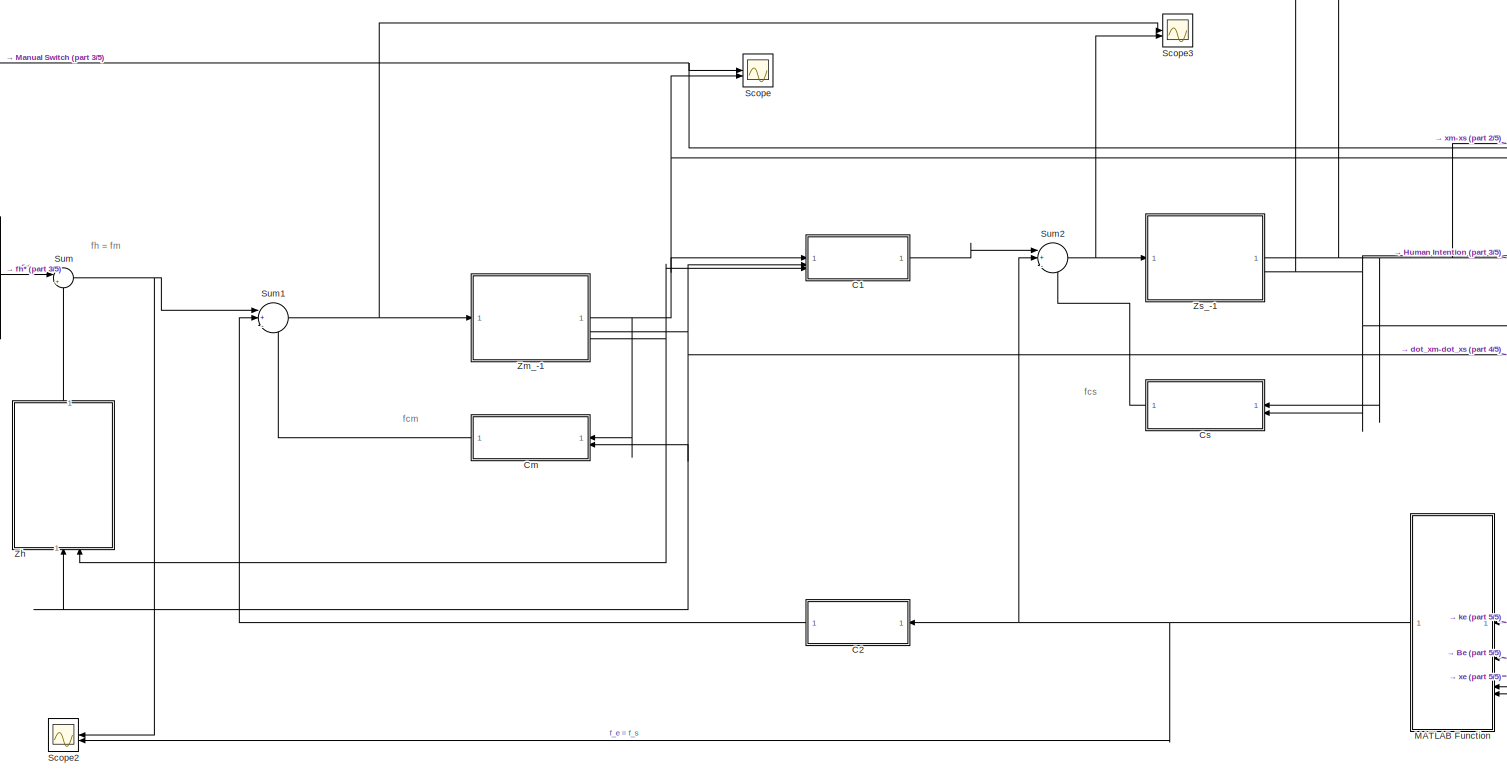
[diagram: root canvas - part 1/5, center side, full height]
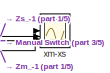
[diagram: root canvas - part 2/5, top right region]
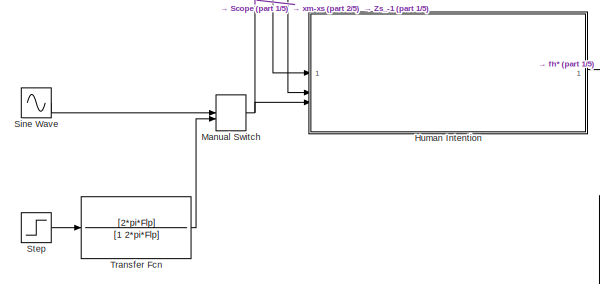
[diagram: root canvas - part 3/5, middle left region]
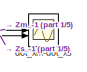
[diagram: root canvas - part 4/5, middle right region]
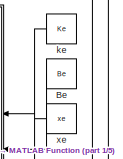
[diagram: root canvas - part 5/5, bottom right region]
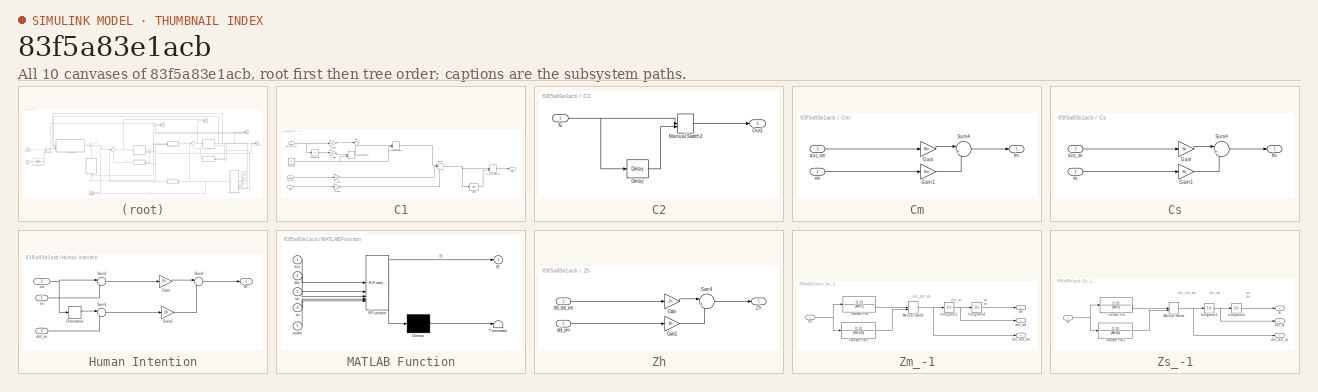
[diagram: thumbnail index - all 10 canvases of the model, root first then tree order]
MODEL slx_83f5a83e1acb
KIND model
CONFIG AbsTol = auto
CONFIG EnableMultiTasking = off
CONFIG FixedStep = auto
CONFIG MaxStep = auto
CONFIG MinStep = auto
CONFIG RelTol = 1e-3
CONFIG SampleTimeConstraint = Unconstrained
CONFIG SolverName = VariableStepAuto
CONFIG StartTime = 0.0
CONFIG StopTime = 5
BLOCK [Constant] Be
  Value = Be
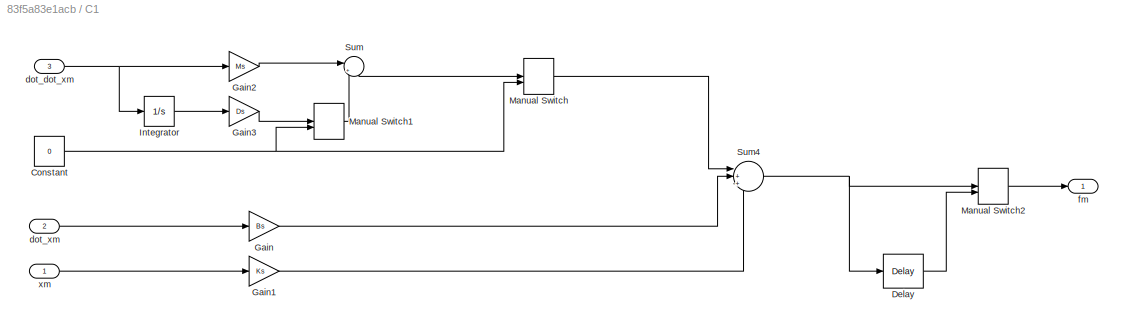
BLOCK [SubSystem] C1
BLOCK [Constant] C1/Constant
  Value = 0
BLOCK [Delay] C1/Delay
  InputPortMap = u0
BLOCK [Gain] C1/Gain
  Gain = Bs
BLOCK [Gain] C1/Gain1
  Gain = Ks
BLOCK [Gain] C1/Gain2
  Gain = Ms
BLOCK [Gain] C1/Gain3
  Gain = Ds
BLOCK [Integrator] C1/Integrator
BLOCK [ManualSwitch] C1/Manual Switch
BLOCK [ManualSwitch] C1/Manual Switch1
BLOCK [ManualSwitch] C1/Manual Switch2
  CurrentSetting = 0
BLOCK [Sum] C1/Sum
  Inputs = |++
BLOCK [Sum] C1/Sum4
  Inputs = |+++
BLOCK [Inport] C1/dot_dot_xm
  Port = 3
BLOCK [Inport] C1/dot_xm
  Port = 2
BLOCK [Outport] C1/fm
BLOCK [Inport] C1/xm
BLOCK [SubSystem] C2
BLOCK [Delay] C2/Delay
  InputPortMap = u0
BLOCK [ManualSwitch] C2/Manual Switch2
  CurrentSetting = 0
BLOCK [Outport] C2/Out1
BLOCK [Inport] C2/fE
BLOCK [SubSystem] Cm
BLOCK [Gain] Cm/Gain
  Gain = Bm
BLOCK [Gain] Cm/Gain1
  Gain = Km
BLOCK [Sum] Cm/Sum4
  Inputs = |++
BLOCK [Inport] Cm/dot_xm
  Port = 2
BLOCK [Outport] Cm/fm
BLOCK [Inport] Cm/xm
BLOCK [SubSystem] Cs
BLOCK [Gain] Cs/Gain
  Gain = Bs
BLOCK [Gain] Cs/Gain1
  Gain = Ks
BLOCK [Sum] Cs/Sum4
  Inputs = |++
BLOCK [Inport] Cs/dot_xs
  Port = 2
BLOCK [Outport] Cs/fm
BLOCK [Inport] Cs/xs
BLOCK [SubSystem] Human Intention
BLOCK [Derivative] Human Intention/Derivative
BLOCK [Gain] Human Intention/Gain
  Gain = Ph
BLOCK [Gain] Human Intention/Gain1
  Gain = Dh
BLOCK [Sum] Human Intention/Sum1
  Inputs = |+-
BLOCK [Sum] Human Intention/Sum2
  Inputs = |+-
BLOCK [Sum] Human Intention/Sum3
  Inputs = |++
BLOCK [Inport] Human Intention/dot_xs
  Port = 2
BLOCK [Outport] Human Intention/fh*
BLOCK [Inport] Human Intention/xd
  Port = 3
BLOCK [Inport] Human Intention/xs
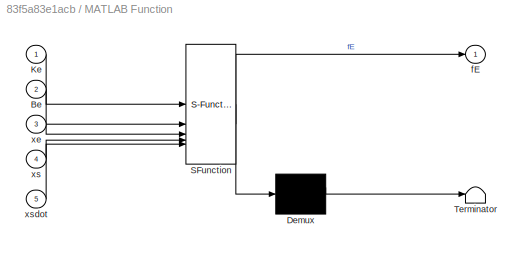
BLOCK [SubSystem] MATLAB Function
  ErrorFcn = Stateflow.Translate.translate
  PermitHierarchicalResolution = ExplicitOnly
  SFBlockType = MATLAB Function
  TreatAsAtomicUnit = on
BLOCK [Demux] MATLAB Function/ Demux 
  Outputs = 1
BLOCK [S-Function] MATLAB Function/ SFunction 
  EnableBusSupport = on
  FunctionName = sf_sfun
  PortCounts = [5 2]
  SFcnIsStateOwnerBlock = off
  SFunctionDeploymentMode = off
  Tag = Stateflow S-Function 2
BLOCK [Terminator] MATLAB Function/ Terminator 
BLOCK [Inport] MATLAB Function/Be
  Port = 2
BLOCK [Inport] MATLAB Function/Ke
BLOCK [Outport] MATLAB Function/fE
BLOCK [Inport] MATLAB Function/xe
  Port = 3
BLOCK [Inport] MATLAB Function/xs
  Port = 4
BLOCK [Inport] MATLAB Function/xsdot
  Port = 5
BLOCK [ManualSwitch] Manual Switch
BLOCK [Scope] Scope
  Floating = off
  NumInputPorts = 2
  ScopeSpecificationString = Simulink.scopes.TimeScopeBlockCfg('CurrentConfiguration', extmgr.ConfigurationSet(extmgr.Configuration('Core','General UI',true),extmgr.Configuration('Core','Source UI',true),extmgr.Configuration('Sources','WiredSimulink',true),extmgr.Configuration('Visuals','Time Domain',true,'SerializedDisplays',{struct('MinYLimReal','-33.14001','MaxYLimReal','31.45996','YLabelReal','','MinYLimMag','0.00000','Ma...<+1513ch>
BLOCK [Scope] Scope2
  Floating = off
  NumInputPorts = 2
  ScopeSpecificationString = Simulink.scopes.TimeScopeBlockCfg('CurrentConfiguration', extmgr.ConfigurationSet(extmgr.Configuration('Core','General UI',true),extmgr.Configuration('Core','Source UI',true),extmgr.Configuration('Sources','WiredSimulink',true,'DataLoggingVariableName','ScopeData2'),extmgr.Configuration('Visuals','Time Domain',true,'SerializedDisplays',{struct('MinYLimReal','-9061.08319','MaxYLimReal','18409.49007...<+1572ch>
BLOCK [Scope] Scope3
  Floating = off
  NumInputPorts = 2
  ScopeSpecificationString = Simulink.scopes.TimeScopeBlockCfg('CurrentConfiguration', extmgr.ConfigurationSet(extmgr.Configuration('Core','General UI',true),extmgr.Configuration('Core','Source UI',true),extmgr.Configuration('Sources','WiredSimulink',true,'DataLoggingVariableName','ScopeData1'),extmgr.Configuration('Visuals','Time Domain',true,'SerializedDisplays',{struct('MinYLimReal','-20349.54623','MaxYLimReal','7846.10159...<+1574ch>
BLOCK [Sin] Sine Wave
  Amplitude = A
  Frequency = 2*pi*Fc
  SampleTime = 0
BLOCK [Step] Step
  After = A
  SampleTime = 0
  Time = 0.5
BLOCK [Sum] Sum
  Inputs = |+-
BLOCK [Sum] Sum1
  Inputs = |+--
BLOCK [Sum] Sum2
  Inputs = |+--
BLOCK [TransferFcn] Transfer Fcn
  Denominator = [1 2*pi*Flp]
  Numerator = [2*pi*Flp]
BLOCK [SubSystem] Zh
  NameLocation = right
BLOCK [Gain] Zh/Gain
  Gain = Jh
BLOCK [Gain] Zh/Gain1
  Gain = Bh
BLOCK [Sum] Zh/Sum4
  Inputs = |++
BLOCK [Outport] Zh/Zh
BLOCK [Inport] Zh/dot_dot_xm
  Port = 2
BLOCK [Inport] Zh/dot_xm
BLOCK [SubSystem] Zm_-1
BLOCK [Integrator] Zm_-1/Integrator1
BLOCK [Integrator] Zm_-1/Integrator4
BLOCK [ManualSwitch] Zm_-1/Manual Switch
  CurrentSetting = 0
BLOCK [TransferFcn] Zm_-1/Transfer Fcn
  Denominator = [Mm 0]
  Numerator = [1 0]
BLOCK [TransferFcn] Zm_-1/Transfer Fcn1
  Denominator = [Mm Dm]
  Numerator = [1 0]
BLOCK [Outport] Zm_-1/dot_dot_xm
  Port = 3
BLOCK [Outport] Zm_-1/dot_xm
  Port = 2
BLOCK [Inport] Zm_-1/fm
BLOCK [Outport] Zm_-1/xm
BLOCK [SubSystem] Zs_-1
BLOCK [Integrator] Zs_-1/Integrator1
BLOCK [Integrator] Zs_-1/Integrator4
BLOCK [ManualSwitch] Zs_-1/Manual Switch
  CurrentSetting = 0
BLOCK [TransferFcn] Zs_-1/Transfer Fcn
  Denominator = [Ms 0]
  Numerator = [1 0]
BLOCK [TransferFcn] Zs_-1/Transfer Fcn1
  Denominator = [Ms Ds]
  Numerator = [1 0]
BLOCK [Outport] Zs_-1/dot_dot_xs
  Port = 3
BLOCK [Outport] Zs_-1/dot_xs
  Port = 2
BLOCK [Inport] Zs_-1/fs
BLOCK [Outport] Zs_-1/xs
BLOCK [Scope] dot_xm-dot_xs
  Floating = off
  NumInputPorts = 2
  ScopeSpecificationString = Simulink.scopes.TimeScopeBlockCfg('CurrentConfiguration', extmgr.ConfigurationSet(extmgr.Configuration('Core','General UI',true),extmgr.Configuration('Core','Source UI',true),extmgr.Configuration('Sources','WiredSimulink',true,'DataLoggingVariableName','ScopeData1'),extmgr.Configuration('Visuals','Time Domain',true,'SerializedDisplays',{struct('MinYLimReal','-370.60615','MaxYLimReal','367.97905','...<+1576ch>
BLOCK [Constant] ke
  Value = Ke
BLOCK [Constant] xe
  Value = xe
BLOCK [Scope] xm-xs
  Floating = off
  NumInputPorts = 3
  ScopeSpecificationString = Simulink.scopes.TimeScopeBlockCfg('CurrentConfiguration', extmgr.ConfigurationSet(extmgr.Configuration('Core','General UI',true),extmgr.Configuration('Core','Source UI',true),extmgr.Configuration('Sources','WiredSimulink',true,'DataLoggingVariableName','ScopeData1'),extmgr.Configuration('Visuals','Time Domain',true,'SerializedDisplays',{struct('MinYLimReal','-81.6665','MaxYLimReal','36.82676','YLa...<+1678ch>
ANNOTATION (root): fcm
ANNOTATION (root): fcs
ANNOTATION (root): fh = fm
ANNOTATION Zm_-1: dot_dot_xm
ANNOTATION Zm_-1: dot_xm
ANNOTATION Zm_-1: xm xm
ANNOTATION Zs_-1: dot_dot_xm
ANNOTATION Zs_-1: dot_xm
ANNOTATION Zs_-1: xm xm
LINE Be:1 -> MATLAB Function:2
NET C1/Constant:1 -> C1/Manual Switch1:2, C1/Manual Switch:2
LINE C1/Delay:1 -> C1/Manual Switch2:2
LINE C1/Gain1:1 -> C1/Sum4:3
LINE C1/Gain2:1 -> C1/Sum:1
LINE C1/Gain3:1 -> C1/Manual Switch1:1
LINE C1/Gain:1 -> C1/Sum4:2
LINE C1/Integrator:1 -> C1/Gain3:1
LINE C1/Manual Switch1:1 -> C1/Sum:2
LINE C1/Manual Switch2:1 -> C1/fm:1
LINE C1/Manual Switch:1 -> C1/Sum4:1
NET C1/Sum4:1 -> C1/Delay:1, C1/Manual Switch2:1
LINE C1/Sum:1 -> C1/Manual Switch:1
NET C1/dot_dot_xm:1 -> C1/Gain2:1, C1/Integrator:1
LINE C1/dot_xm:1 -> C1/Gain:1
LINE C1/xm:1 -> C1/Gain1:1
LINE C1:1 -> Sum2:1
LINE C2/Delay:1 -> C2/Manual Switch2:2
LINE C2/Manual Switch2:1 -> C2/Out1:1
NET C2/fE:1 -> C2/Delay:1, C2/Manual Switch2:1
LINE C2:1 -> Sum1:2
LINE Cm/Gain1:1 -> Cm/Sum4:2
LINE Cm/Gain:1 -> Cm/Sum4:1
LINE Cm/Sum4:1 -> Cm/fm:1
LINE Cm/dot_xm:1 -> Cm/Gain:1
LINE Cm/xm:1 -> Cm/Gain1:1
LINE Cm:1 -> Sum1:3
LINE Cs/Gain1:1 -> Cs/Sum4:2
LINE Cs/Gain:1 -> Cs/Sum4:1
LINE Cs/Sum4:1 -> Cs/fm:1
LINE Cs/dot_xs:1 -> Cs/Gain:1
LINE Cs/xs:1 -> Cs/Gain1:1
LINE Cs:1 -> Sum2:3
LINE Human Intention/Derivative:1 -> Human Intention/Sum1:1
LINE Human Intention/Gain1:1 -> Human Intention/Sum3:2
LINE Human Intention/Gain:1 -> Human Intention/Sum3:1
LINE Human Intention/Sum1:1 -> Human Intention/Gain1:1
LINE Human Intention/Sum2:1 -> Human Intention/Gain:1
LINE Human Intention/Sum3:1 -> Human Intention/fh*:1
LINE Human Intention/dot_xs:1 -> Human Intention/Sum1:2
NET Human Intention/xd:1 -> Human Intention/Derivative:1, Human Intention/Sum2:1
LINE Human Intention/xs:1 -> Human Intention/Sum2:2
LINE Human Intention:1 -> Sum:1
NET MATLAB Function:1 -> C2:1, Scope2:2, Sum2:2
NET Manual Switch:1 -> Human Intention:3, Scope:1, xm-xs:3
LINE Sine Wave:1 -> Manual Switch:1
LINE Step:1 -> Transfer Fcn:1
NET Sum1:1 -> Scope3:1, Zm_-1:1
NET Sum2:1 -> Scope3:2, Zs_-1:1
NET Sum:1 -> Scope2:1, Sum1:1
LINE Transfer Fcn:1 -> Manual Switch:2
LINE Zh/Gain1:1 -> Zh/Sum4:2
LINE Zh/Gain:1 -> Zh/Sum4:1
LINE Zh/Sum4:1 -> Zh/Zh:1
LINE Zh/dot_dot_xm:1 -> Zh/Gain:1
LINE Zh/dot_xm:1 -> Zh/Gain1:1
LINE Zh:1 -> Sum:2
NET Zm_-1/Integrator1:1 -> Zm_-1/Integrator4:1, Zm_-1/dot_xm:1
LINE Zm_-1/Integrator4:1 -> Zm_-1/xm:1
NET Zm_-1/Manual Switch:1 -> Zm_-1/Integrator1:1, Zm_-1/dot_dot_xm:1
LINE Zm_-1/Transfer Fcn1:1 -> Zm_-1/Manual Switch:2
LINE Zm_-1/Transfer Fcn:1 -> Zm_-1/Manual Switch:1
NET Zm_-1/fm:1 -> Zm_-1/Transfer Fcn1:1, Zm_-1/Transfer Fcn:1
NET Zm_-1:1 -> C1:1, Cm:1, Scope:2, xm-xs:1
NET Zm_-1:2 -> C1:2, Cm:2, Zh:1, dot_xm-dot_xs:1
NET Zm_-1:3 -> C1:3, Zh:2
NET Zs_-1/Integrator1:1 -> Zs_-1/Integrator4:1, Zs_-1/dot_xs:1
LINE Zs_-1/Integrator4:1 -> Zs_-1/xs:1
NET Zs_-1/Manual Switch:1 -> Zs_-1/Integrator1:1, Zs_-1/dot_dot_xs:1
LINE Zs_-1/Transfer Fcn1:1 -> Zs_-1/Manual Switch:2
LINE Zs_-1/Transfer Fcn:1 -> Zs_-1/Manual Switch:1
NET Zs_-1/fs:1 -> Zs_-1/Transfer Fcn1:1, Zs_-1/Transfer Fcn:1
NET Zs_-1:1 -> Cs:1, Human Intention:1, MATLAB Function:4, xm-xs:2
NET Zs_-1:2 -> Cs:2, Human Intention:2, MATLAB Function:5, dot_xm-dot_xs:2
LINE ke:1 -> MATLAB Function:1
LINE xe:1 -> MATLAB Function:3
note: NET lines group one-source signal fan-out (src -> all destinations, sorted); 1:1 wires keep LINE
CHART MATLAB Function states=1 transitions=1
  STATE_LABEL 'eML_blk_kernel()'
  STATE_LABEL 'SCRIPT:\nfunction fE = environment(Ke, Be, xe, xs, xsdot)\n    if xs > xe\n        fE = Ke * (xs - xe) + Be * xsdot; % Plot both contributions Ke and Be\n    else\n        fE = 0;\n    end\nend\n'
CHART  states=0 transitions=0
